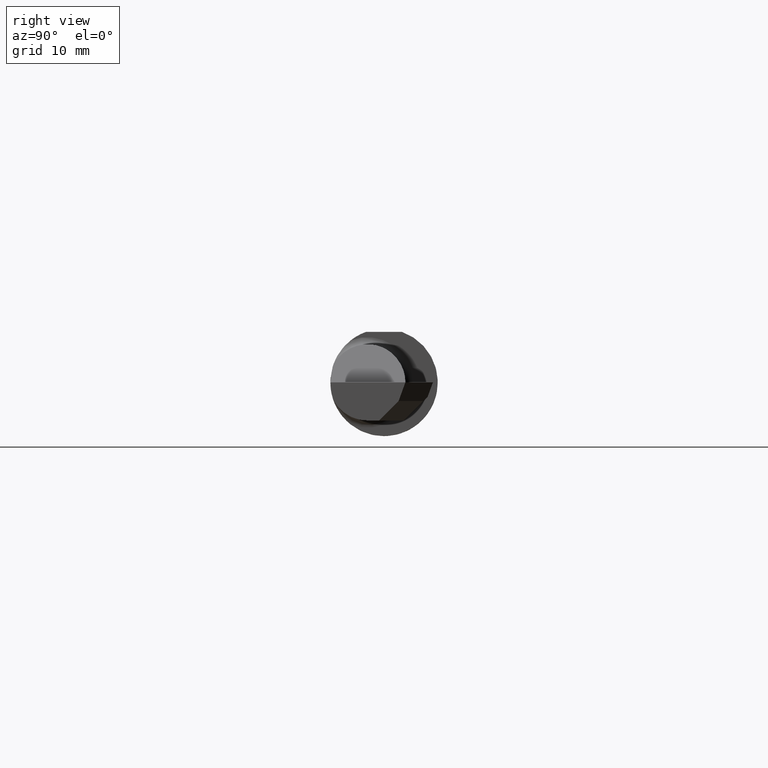
[diagram: clean part render]
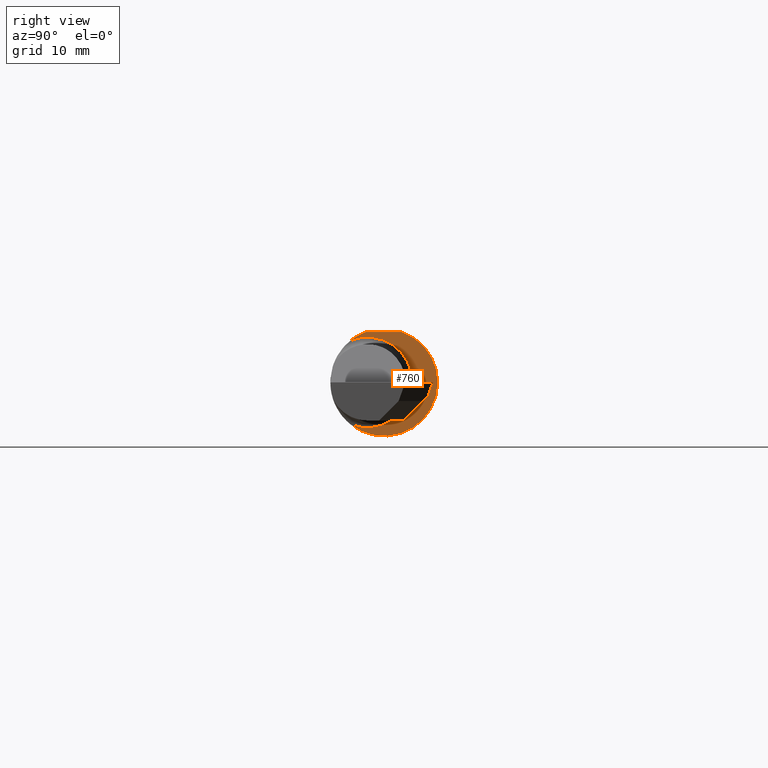
[diagram: same view with one face highlighted and labeled with its STEP entity id]
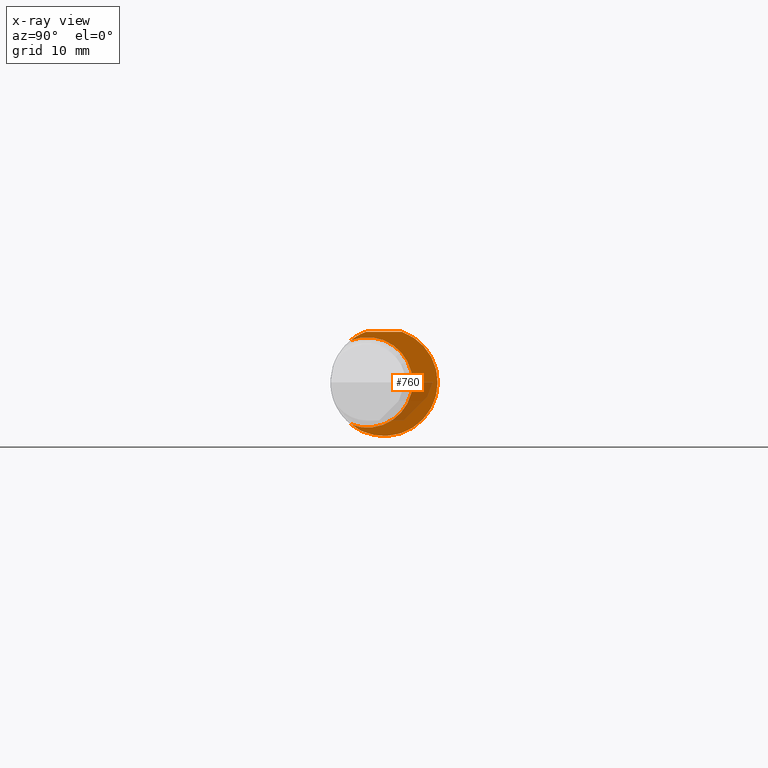
[diagram: x-ray of the same camera — body ghosted, the highlighted face saturated]
A machine part, right view. The second image highlights one B-rep face of the part: STEP entity #760.
The next image is the same camera in x-ray: the body ghosted, the highlighted face saturated — about 19% of this face is hidden behind the body in this view.
In plain terms, the highlighted planar face has unit normal (1, -0, 0).
Its self-contained STEP definition (entity closure, byte-faithful):
#6 = DIRECTION ( 'NONE',  ( 1.000000000000000000, -8.318523153256623909E-17, 0.000000000000000000 ) ) ;
#44 = CARTESIAN_POINT ( 'NONE',  ( 1.149999999999999911, -0.05835000000000011011, 0.000000000000000000 ) ) ;
#89 = VERTEX_POINT ( 'NONE', #463 ) ;
#105 = CARTESIAN_POINT ( 'NONE',  ( 1.150000000000000133, -0.06325108694718235836, 0.1763499999999999235 ) ) ;
#183 = CARTESIAN_POINT ( 'NONE',  ( 1.149999999999999689, -0.1160303770351326785, 0.1470951192429067189 ) ) ;
#197 = VERTEX_POINT ( 'NONE', #105 ) ;
#205 = DIRECTION ( 'NONE',  ( 0.000000000000000000, 1.000000000000000000, 0.000000000000000000 ) ) ;
#209 = PLANE ( 'NONE',  #609 ) ;
#220 = VECTOR ( 'NONE', #586, 39.37007874015748143 ) ;
#252 = EDGE_CURVE ( 'NONE', #197, #301, #538, .T. ) ;
#254 = EDGE_LOOP ( 'NONE', ( #361, #543, #376, #489 ) ) ;
#270 = DIRECTION ( 'NONE',  ( 1.000000000000000000, -8.318523153256623909E-17, 0.000000000000000000 ) ) ;
#278 = FACE_OUTER_BOUND ( 'NONE', #254, .T. ) ;
#301 = VERTEX_POINT ( 'NONE', #183 ) ;
#354 = AXIS2_PLACEMENT_3D ( 'NONE', #44, #532, #720 ) ;
#361 = ORIENTED_EDGE ( 'NONE', *, *, #765, .T. ) ;
#372 = DIRECTION ( 'NONE',  ( 0.000000000000000000, 1.000000000000000000, 0.000000000000000000 ) ) ;
#376 = ORIENTED_EDGE ( 'NONE', *, *, #252, .T. ) ;
#382 = DIRECTION ( 'NONE',  ( 1.000000000000000000, -8.318523153256623909E-17, 0.000000000000000000 ) ) ;
#392 = AXIS2_PLACEMENT_3D ( 'NONE', #433, #6, #372 ) ;
#433 = CARTESIAN_POINT ( 'NONE',  ( 1.150000000000000133, 0.000000000000000000, 0.000000000000000000 ) ) ;
#443 = LINE ( 'NONE', #634, #220 ) ;
#445 = CARTESIAN_POINT ( 'NONE',  ( 1.149999999999999689, -0.1160303770351326785, -0.1470951192429067189 ) ) ;
#449 = CARTESIAN_POINT ( 'NONE',  ( 1.150000000000000133, 0.1873499999999998222, 0.000000000000000000 ) ) ;
#461 = CARTESIAN_POINT ( 'NONE',  ( 1.150000000000000133, 0.000000000000000000, 0.000000000000000000 ) ) ;
#463 = CARTESIAN_POINT ( 'NONE',  ( 1.150000000000000133, 0.06325108694718235836, 0.1763499999999999235 ) ) ;
#464 = CIRCLE ( 'NONE', #582, 0.1873499999999999888 ) ;
#489 = ORIENTED_EDGE ( 'NONE', *, *, #695, .T. ) ;
#532 = DIRECTION ( 'NONE',  ( -1.000000000000000000, 8.318523153256623909E-17, -0.000000000000000000 ) ) ;
#538 = CIRCLE ( 'NONE', #392, 0.1873499999999999888 ) ;
#543 = ORIENTED_EDGE ( 'NONE', *, *, #624, .F. ) ;
#582 = AXIS2_PLACEMENT_3D ( 'NONE', #461, #382, #205 ) ;
#586 = DIRECTION ( 'NONE',  ( 8.318523153256623909E-17, 1.000000000000000000, -0.000000000000000000 ) ) ;
#609 = AXIS2_PLACEMENT_3D ( 'NONE', #449, #270, #638 ) ;
#624 = EDGE_CURVE ( 'NONE', #197, #89, #443, .T. ) ;
#634 = CARTESIAN_POINT ( 'NONE',  ( 1.150000000000000133, 0.1873499999999999888, 0.1763499999999999235 ) ) ;
#638 = DIRECTION ( 'NONE',  ( 8.318523153256623909E-17, 1.000000000000000000, 0.000000000000000000 ) ) ;
#695 = EDGE_CURVE ( 'NONE', #301, #800, #703, .T. ) ;
#703 = CIRCLE ( 'NONE', #354, 0.1580000000000000016 ) ;
#720 = DIRECTION ( 'NONE',  ( 0.000000000000000000, -1.000000000000000000, 0.000000000000000000 ) ) ;
#760 = ADVANCED_FACE ( 'NONE', ( #278 ), #209, .T. ) ;
#765 = EDGE_CURVE ( 'NONE', #800, #89, #464, .T. ) ;
#800 = VERTEX_POINT ( 'NONE', #445 ) ;